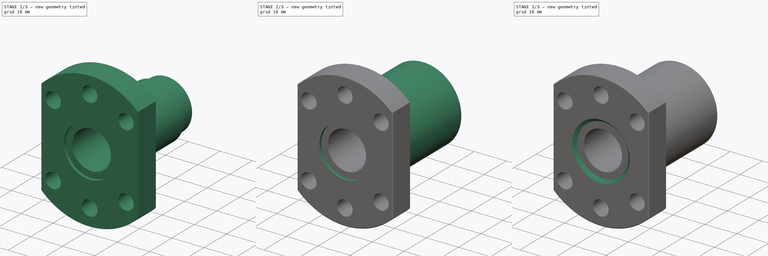
[diagram: build sequence overview — one tinted view per stage of 3, left to right]
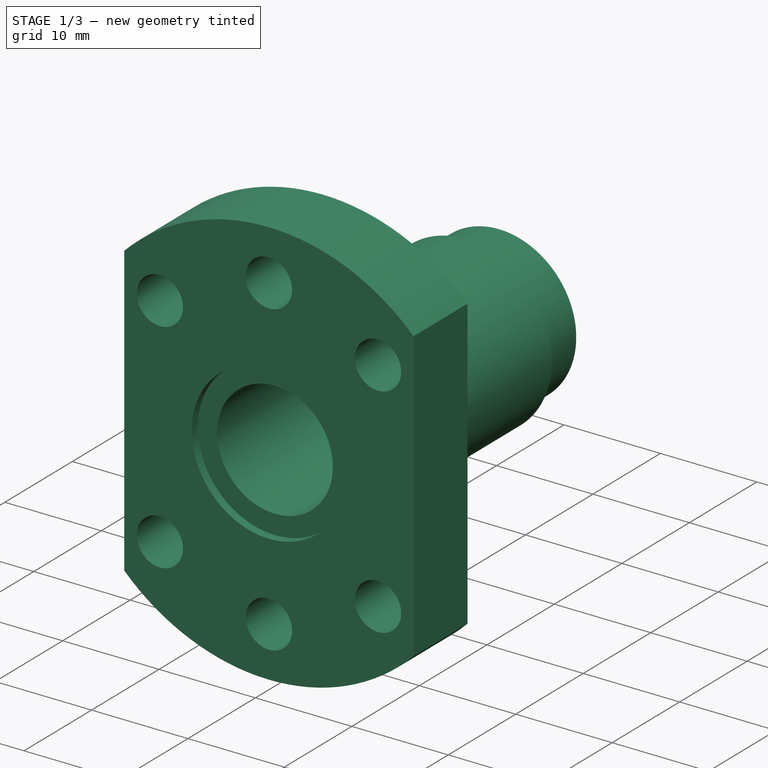
[diagram: stage 1 of 3 — iso view after this stage's code; geometry added in this stage tinted green]
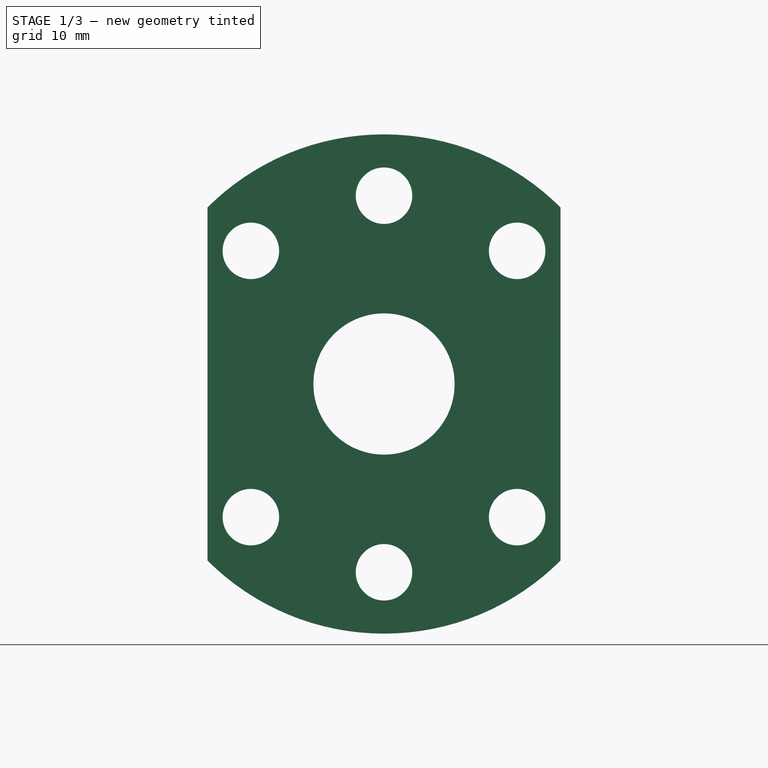
[diagram: stage 1 of 3 — front view after this stage's code; geometry added in this stage tinted green]
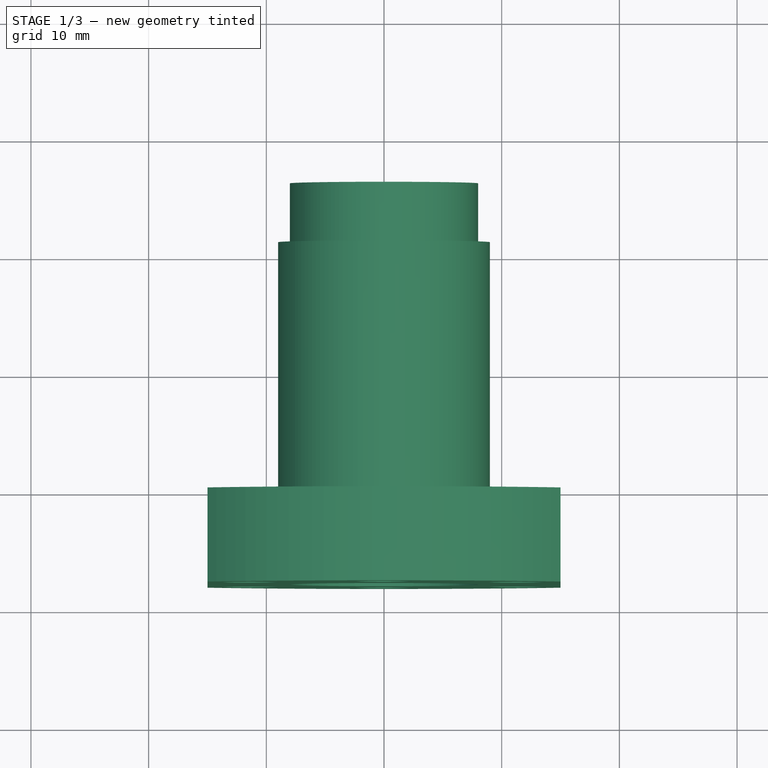
[diagram: stage 1 of 3 — top view after this stage's code; geometry added in this stage tinted green]
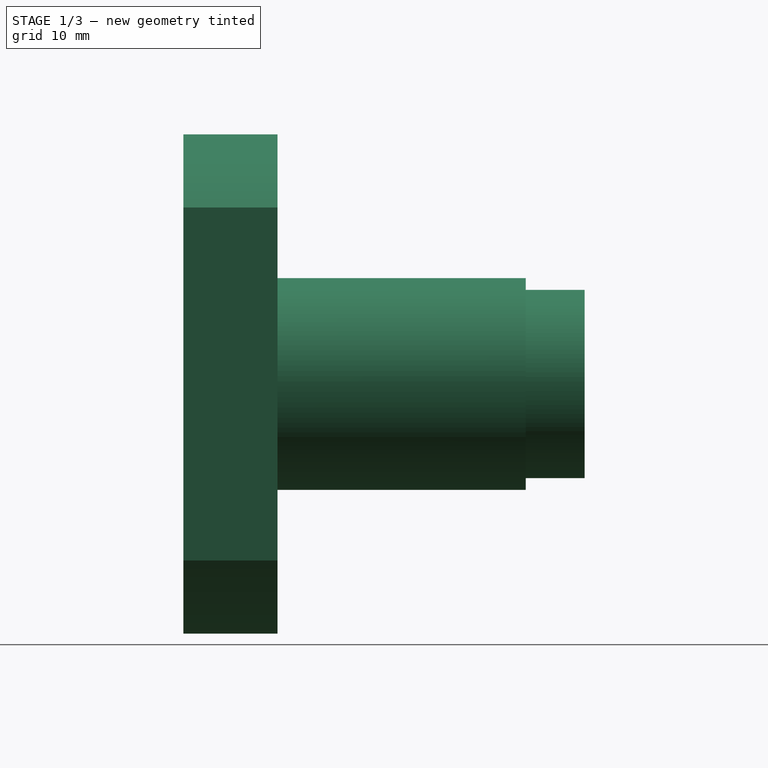
[diagram: stage 1 of 3 — right view after this stage's code; geometry added in this stage tinted green]
FCSTD DOCUMENT  (FreeCAD 0.15R4671 (Git))
Label: ballnut
License: All rights reserved
LicenseURL: http://en.wikipedia.org/wiki/All_rights_reserved
objects: Sketcher::SketchObject×4, PartDesign::Chamfer×3, PartDesign::Pad×2, PartDesign::Pocket×1, PartDesign::Revolution×1, Part::MultiFuse×1
note: 16 computed .brp shape members not serialized (recipe doc carries the construction recipe); baked Part::Feature solids carry a one-line shape summary decoded from their .brp

FEATURE [Sketcher::SketchObject] Sketch  label="plate-sketch"
  Placement = pos=(0,0,0) rot=(1,0,0;1.5708rad)
  sketch-geometry (7):
    g0: LineSegment [constr] StartX=-15 StartY=15 StartZ=0 EndX=15 EndY=15 EndZ=0
    g1: LineSegment StartX=15 StartY=15 StartZ=0 EndX=15 EndY=-15 EndZ=0
    g2: LineSegment [constr] StartX=15 StartY=-15 StartZ=0 EndX=-15 EndY=-15 EndZ=0
    g3: LineSegment StartX=-15 StartY=-15 StartZ=0 EndX=-15 EndY=15 EndZ=0
    g4: ArcOfCircle CenterX=0 CenterY=0 CenterZ=0 NormalX=0 NormalY=0 NormalZ=1 Radius=21.2132 StartAngle=0.785398 EndAngle=2.35619
    g5: ArcOfCircle CenterX=0 CenterY=0 CenterZ=0 NormalX=0 NormalY=0 NormalZ=1 Radius=21.2132 StartAngle=3.92699 EndAngle=5.49779
    g6: Circle CenterX=0 CenterY=0 CenterZ=0 NormalX=0 NormalY=0 NormalZ=1 Radius=8
  constraints (19):
    c: Coincident(g0,g1)
    c: Coincident(g1,g2)
    c: Coincident(g2,g3)
    c: Coincident(g3,g0)
    c: Horizontal(g2)
    c: Vertical(g1)
    c: Coincident(g4,g-1)
    c: Coincident(g4,g0)
    c: Coincident(g4,g0)
    c: Coincident(g5,g-1)
    c: Coincident(g5,g1)
    c: Coincident(g5,g2)
    c: Symmetric(g0,g2,g-1)
    c: Vertical(g3)
    c: DistanceY(g0,g1) = -30
    c: Horizontal(g0)
    c: Equal(g0,g1)
    c: Coincident(g6,g-1)
    c: Radius(g6) = 8
FEATURE [PartDesign::Pad] Pad  label="plate"
  Length = 8
  Length2 = 100
  Placement = pos=(0,0,0) rot=(1,0,0;1.5708rad)
  Sketch = -> Sketch
  Type = 0
FEATURE [Sketcher::SketchObject] Sketch001  label="plate-holes-sletch"
  Placement = pos=(0,-8,0) rot=(1,0,0;1.5708rad)
  Support = -> Pad [Face7]
  sketch-geometry (10):
    g0: Circle [constr] CenterX=0 CenterY=0 CenterZ=0 NormalX=0 NormalY=0 NormalZ=1 Radius=16
    g1: LineSegment [constr] StartX=11.3137 StartY=-11.3137 StartZ=0 EndX=-11.3137 EndY=11.3137 EndZ=0
    g2: LineSegment [constr] StartX=11.3137 StartY=11.3137 StartZ=0 EndX=-11.3137 EndY=-11.3137 EndZ=0
    g3: Circle CenterX=-11.3137 CenterY=11.3137 CenterZ=0 NormalX=0 NormalY=0 NormalZ=1 Radius=2.4
    g4: LineSegment [constr] StartX=0 StartY=16 StartZ=0 EndX=0 EndY=-16 EndZ=0
    g5: Circle CenterX=0 CenterY=16 CenterZ=0 NormalX=0 NormalY=0 NormalZ=1 Radius=2.4
    g6: Circle CenterX=11.3137 CenterY=11.3137 CenterZ=0 NormalX=0 NormalY=0 NormalZ=1 Radius=2.4
    g7: Circle CenterX=11.3137 CenterY=-11.3137 CenterZ=0 NormalX=0 NormalY=0 NormalZ=1 Radius=2.4
    g8: Circle CenterX=0 CenterY=-16 CenterZ=0 NormalX=0 NormalY=0 NormalZ=1 Radius=2.4
    g9: Circle CenterX=-11.3137 CenterY=-11.3137 CenterZ=0 NormalX=0 NormalY=0 NormalZ=1 Radius=2.4
  constraints (26):
    c: Coincident(g0,g-1)
    c: Radius(g0) = 16
    c: PointOnObject(g1,g0)
    c: PointOnObject(g1,g0)
    c: PointOnObject(g-1,g1)
    c: PointOnObject(g2,g0)
    c: PointOnObject(g2,g0)
    c: PointOnObject(g-1,g2)
    c: Angle(g-2,g1) = 0.785398
    c: Angle(g2,g-2) = 0.785398
    c: Coincident(g3,g1)
    c: PointOnObject(g4,g0)
    c: PointOnObject(g4,g0)
    c: PointOnObject(g4,g-2)
    c: PointOnObject(g4,g-2)
    c: Coincident(g5,g4)
    c: Coincident(g6,g2)
    c: Coincident(g7,g1)
    c: Coincident(g8,g4)
    c: Coincident(g9,g2)
    c: Radius(g7) = 2.4
    c: Equal(g7,g8)
    c: Equal(g7,g9)
    c: Equal(g7,g3)
    c: Equal(g7,g5)
    c: Equal(g7,g6)
FEATURE [PartDesign::Pocket] Pocket  label="plate-holes"
  Length = 5
  Placement = pos=(0,0,0) rot=(1,0,0;1.5708rad)
  Sketch = -> Sketch001
  Type = 1
FEATURE [Sketcher::SketchObject] Sketch003  label="housing-inner-sketch"
  Placement = pos=(0,0,0) rot=(0.57735,0.57735,0.57735;2.0944rad)
  sketch-geometry (8):
    g0: LineSegment StartX=-7.1 StartY=6 StartZ=0 EndX=-7.1 EndY=8 EndZ=0
    g1: LineSegment StartX=26.1 StartY=8 StartZ=0 EndX=26.1 EndY=6 EndZ=0
    g2: LineSegment StartX=26.1 StartY=6 StartZ=0 EndX=-7.1 EndY=6 EndZ=0
    g3: LineSegment StartX=-7.1 StartY=8 StartZ=0 EndX=-2.1 EndY=8 EndZ=0
    g4: LineSegment StartX=-2.1 StartY=8 StartZ=0 EndX=-2.1 EndY=9 EndZ=0
    g5: LineSegment StartX=-2.1 StartY=9 StartZ=0 EndX=21.1 EndY=9 EndZ=0
    g6: LineSegment StartX=21.1 StartY=9 StartZ=0 EndX=21.1 EndY=8 EndZ=0
    g7: LineSegment StartX=21.1 StartY=8 StartZ=0 EndX=26.1 EndY=8 EndZ=0
  constraints (24):
    c: Vertical(g0)
    c: Vertical(g1)
    c: Coincident(g1,g2)
    c: Coincident(g2,g0)
    c: DistanceX(g-1,g0) = -7.1
    c: DistanceY(g-1,g0) = 6
    c: DistanceY(g-1,g0) = 8
    c: Horizontal(g2)
    c: DistanceX(g0,g1) = 33.2
    c: Coincident(g0,g3)
    c: Horizontal(g3)
    c: Coincident(g3,g4)
    c: Vertical(g4)
    c: Coincident(g4,g5)
    c: Horizontal(g5)
    c: Coincident(g5,g6)
    c: Vertical(g6)
    c: Coincident(g6,g7)
    c: Coincident(g7,g1)
    c: Horizontal(g7)
    c: PointOnObject(g6,g3)
    c: Equal(g7,g3)
    c: DistanceY(g5,g6) = -1
    c: DistanceX(g6,g1) = 5
FEATURE [PartDesign::Revolution] Revolution  label="housing-inner"
  Angle = 360
  Axis = (0,1,0)
  Base = (0,0,0)
  Placement = pos=(0,0,0) rot=(0.57735,0.57735,0.57735;2.0944rad)
  ReferenceAxis = -> Sketch003 [H_Axis]
  Sketch = -> Sketch003
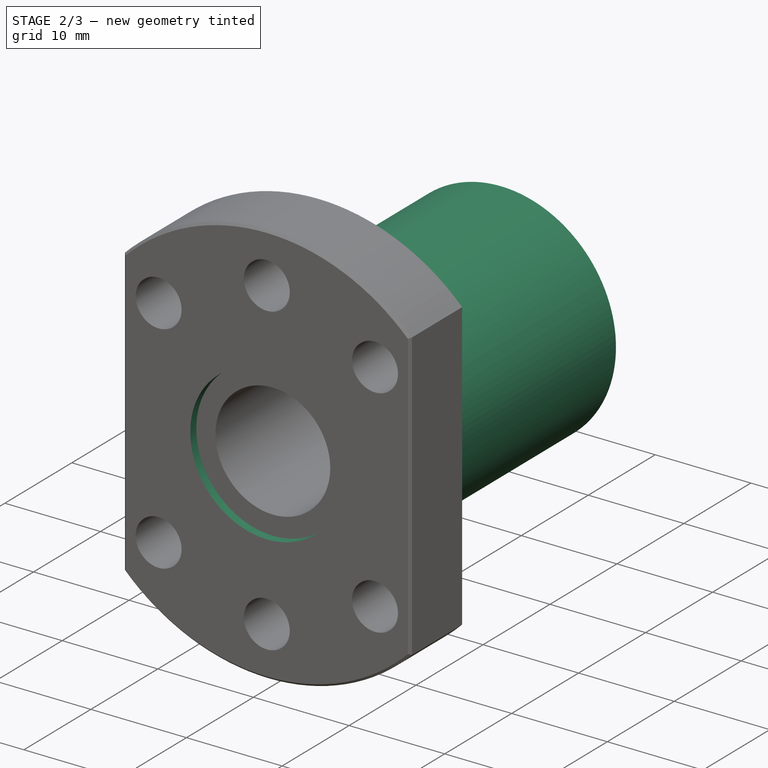
[diagram: stage 2 of 3 — iso view after this stage's code; geometry added in this stage tinted green]
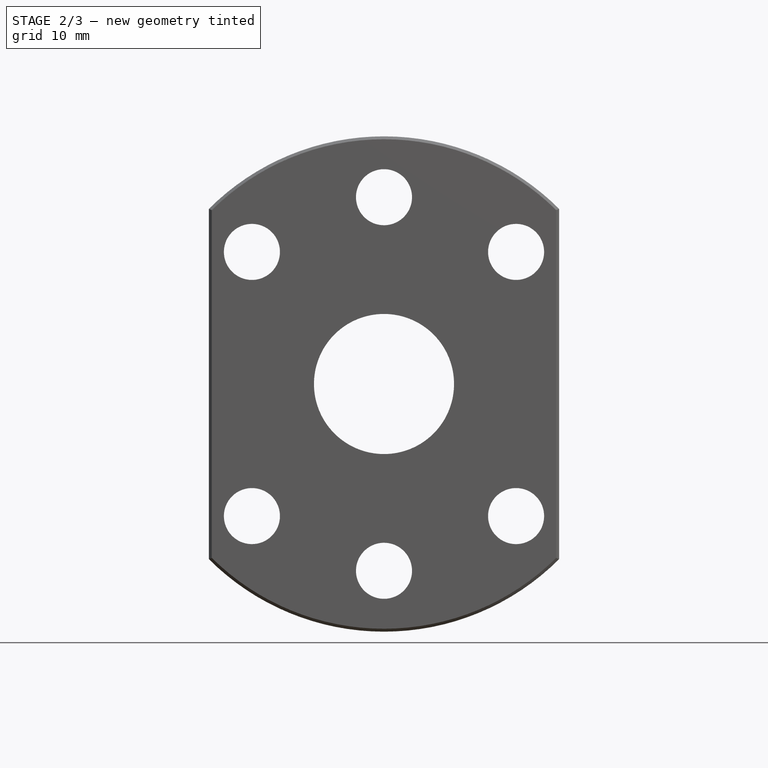
[diagram: stage 2 of 3 — front view after this stage's code; geometry added in this stage tinted green]
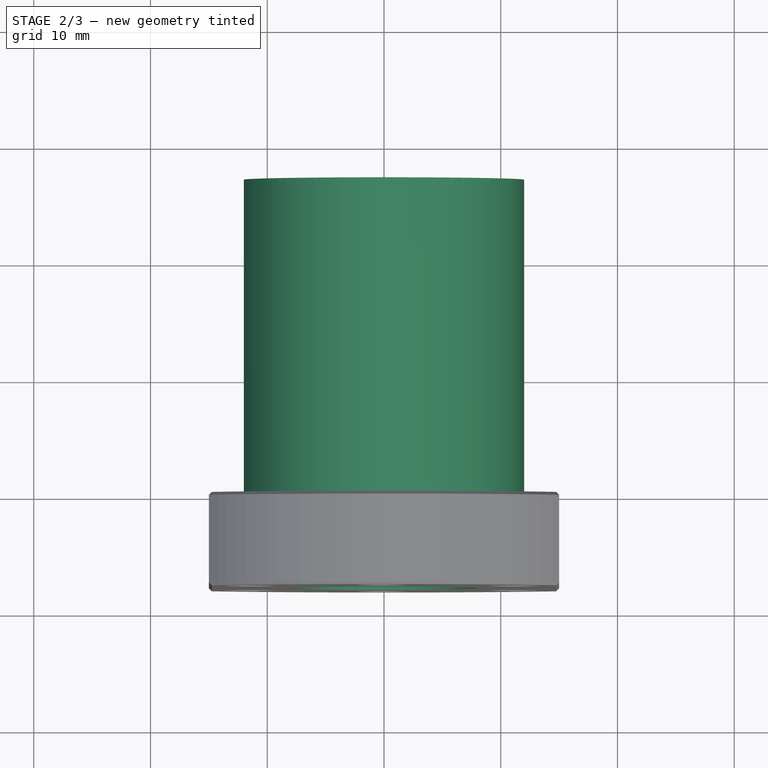
[diagram: stage 2 of 3 — top view after this stage's code; geometry added in this stage tinted green]
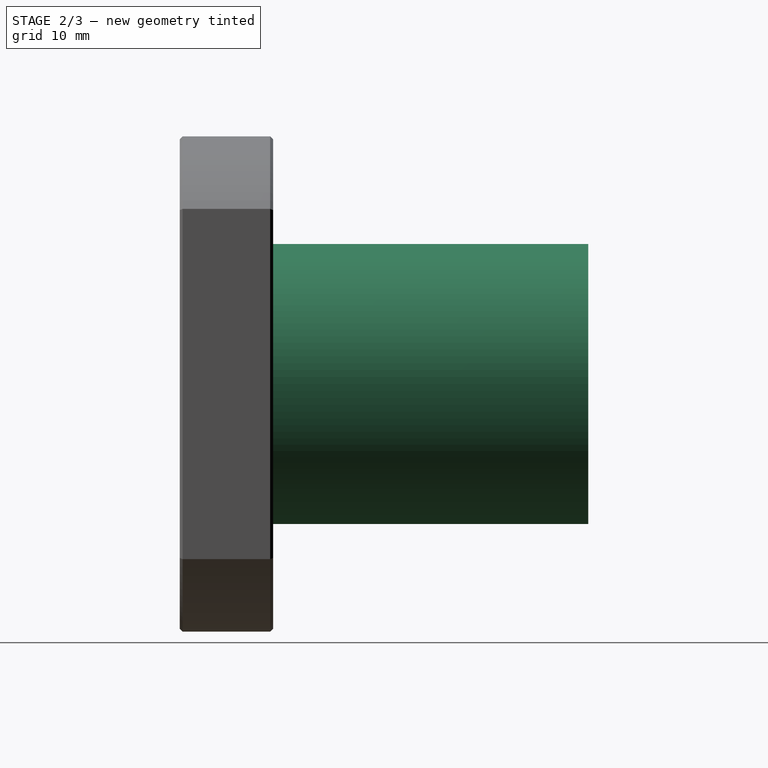
[diagram: stage 2 of 3 — right view after this stage's code; geometry added in this stage tinted green]
FEATURE [Sketcher::SketchObject] Sketch002  label="housing-sketch"
  Placement = pos=(0,-8,0) rot=(1,0,0;1.5708rad)
  Support = -> Pocket [Face5]
  sketch-geometry (2):
    g0: Circle CenterX=0 CenterY=0 CenterZ=0 NormalX=0 NormalY=0 NormalZ=1 Radius=8
    g1: Circle CenterX=0 CenterY=0 CenterZ=0 NormalX=0 NormalY=0 NormalZ=1 Radius=12
  constraints (4):
    c: Coincident(g0,g-1)
    c: Radius(g1) = 12
    c: Radius(g0) = 8
    c: Coincident(g1,g-1)
FEATURE [PartDesign::Pad] Pad001  label="housing"
  Length = 35
  Length2 = 100
  Placement = pos=(0,0,0) rot=(1,0,0;1.5708rad)
  Reversed = true
  Sketch = -> Sketch002
  Type = 0
FEATURE [PartDesign::Chamfer] Chamfer  label="plate-chamfer"
  Base = -> Pad001 [Edge10,Edge9,Edge11,Edge19,Edge6,Edge7,Edge4,Edge3]
  Placement = pos=(0,0,0) rot=(1,0,0;1.5708rad)
  Size = 0.25
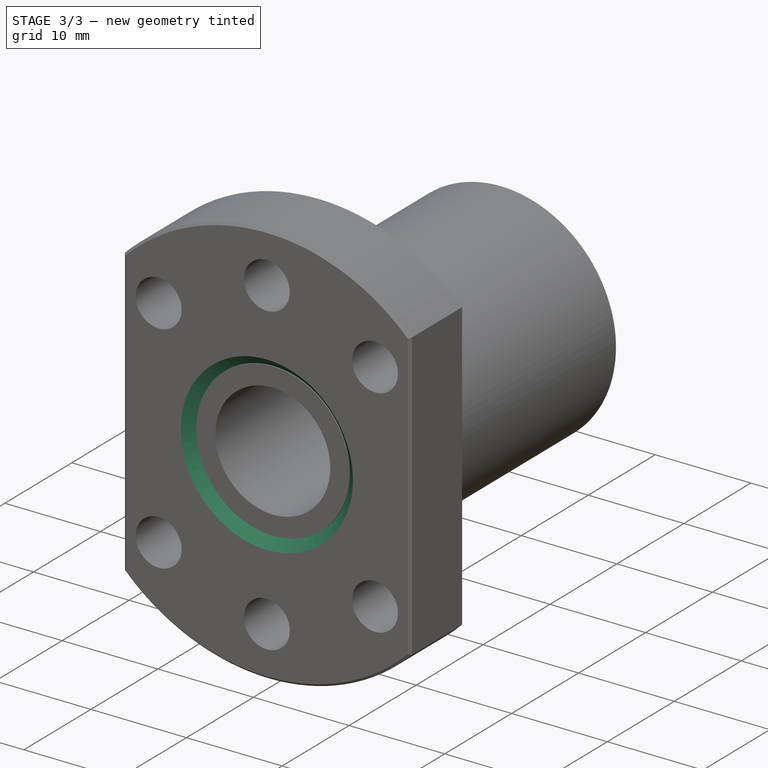
[diagram: stage 3 of 3 — iso view after this stage's code; geometry added in this stage tinted green]
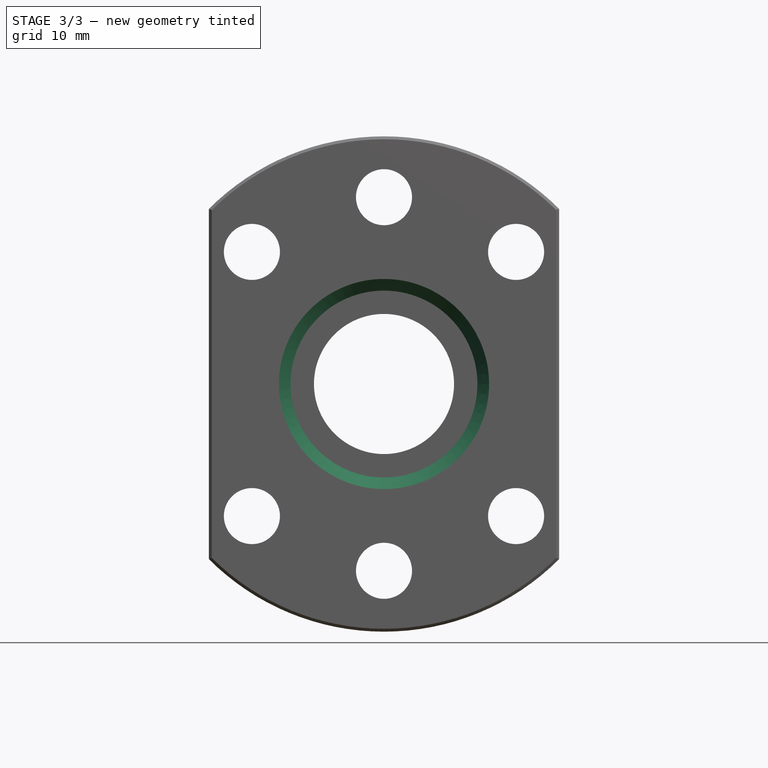
[diagram: stage 3 of 3 — front view after this stage's code; geometry added in this stage tinted green]
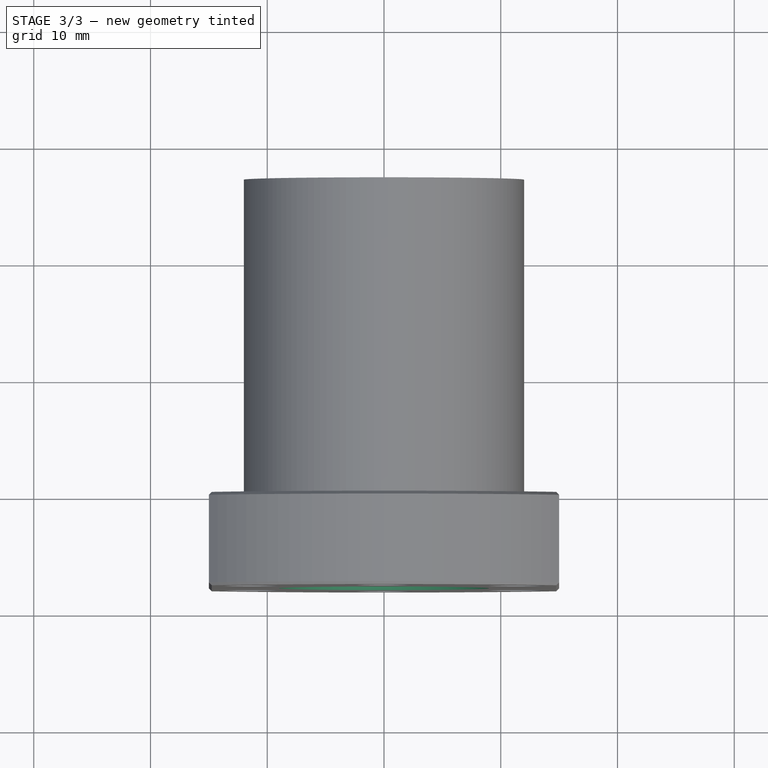
[diagram: stage 3 of 3 — top view after this stage's code; geometry added in this stage tinted green]
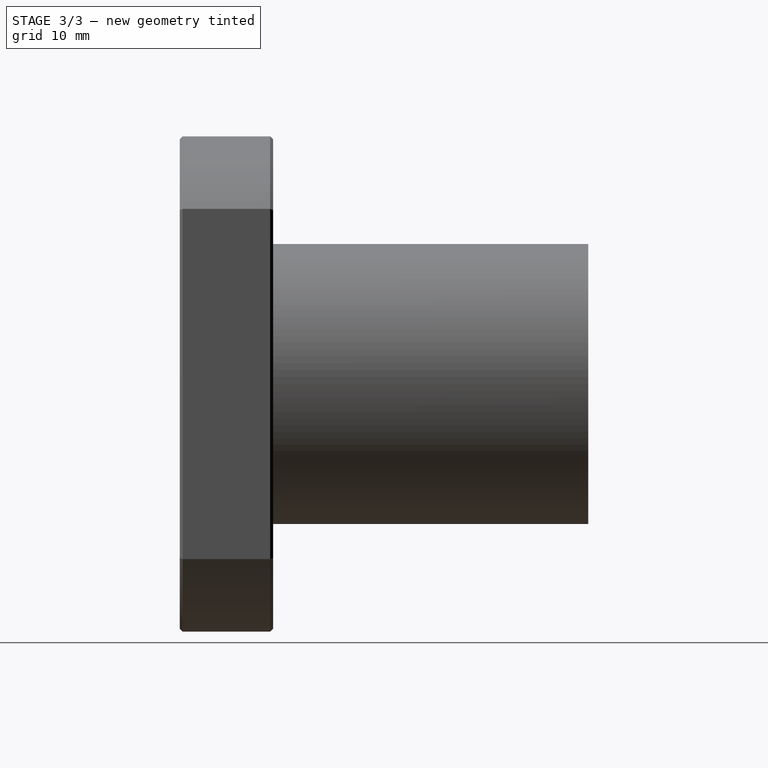
[diagram: stage 3 of 3 — right view after this stage's code; geometry added in this stage tinted green]
FEATURE [PartDesign::Chamfer] Chamfer001  label="plate-center-chamfer"
  Base = -> Chamfer [Edge35]
  Placement = pos=(0,0,0) rot=(1,0,0;1.5708rad)
  Size = 1
FEATURE [PartDesign::Chamfer] Chamfer002  label="housing-chamfer"
  Base = -> Chamfer001 [Edge35]
  Placement = pos=(0,0,0) rot=(1,0,0;1.5708rad)
  Size = 1
FEATURE [Part::MultiFuse] Fusion  label="ballnut"
  Shapes = -> [Chamfer002,Revolution]
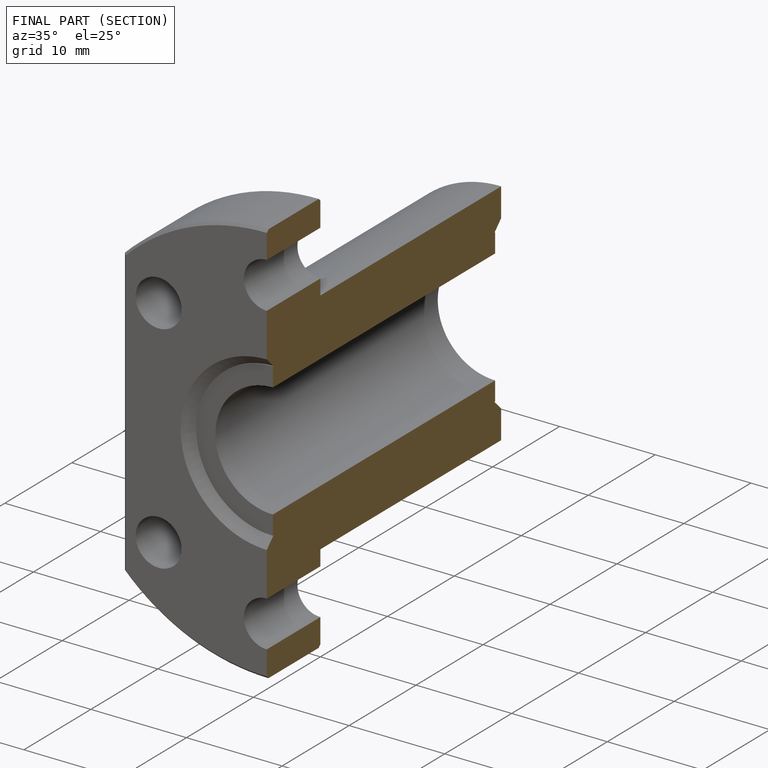
[diagram: finished part — half-section view (interior)]
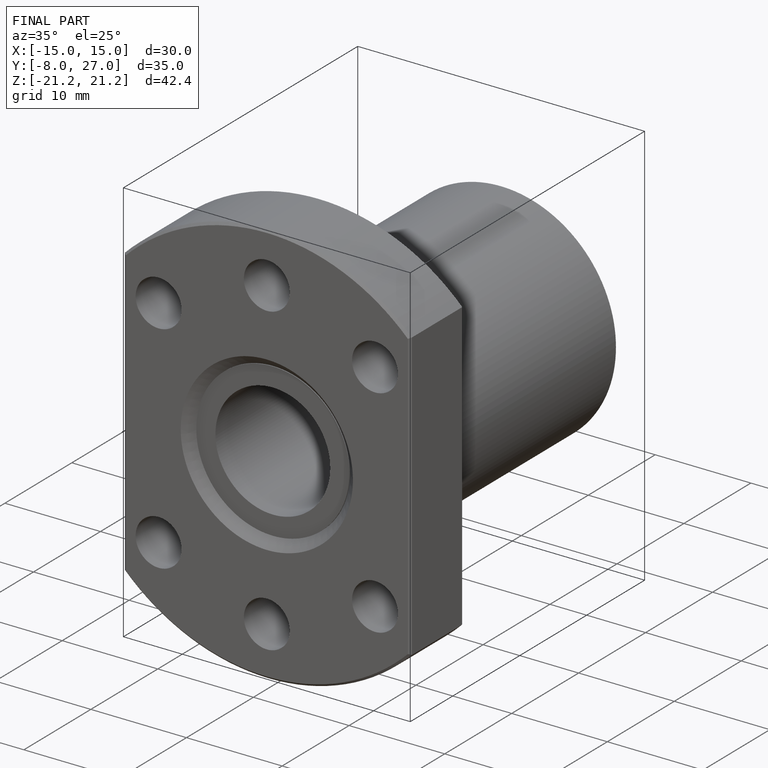
[diagram: finished part — iso view with bounding-box wireframe]
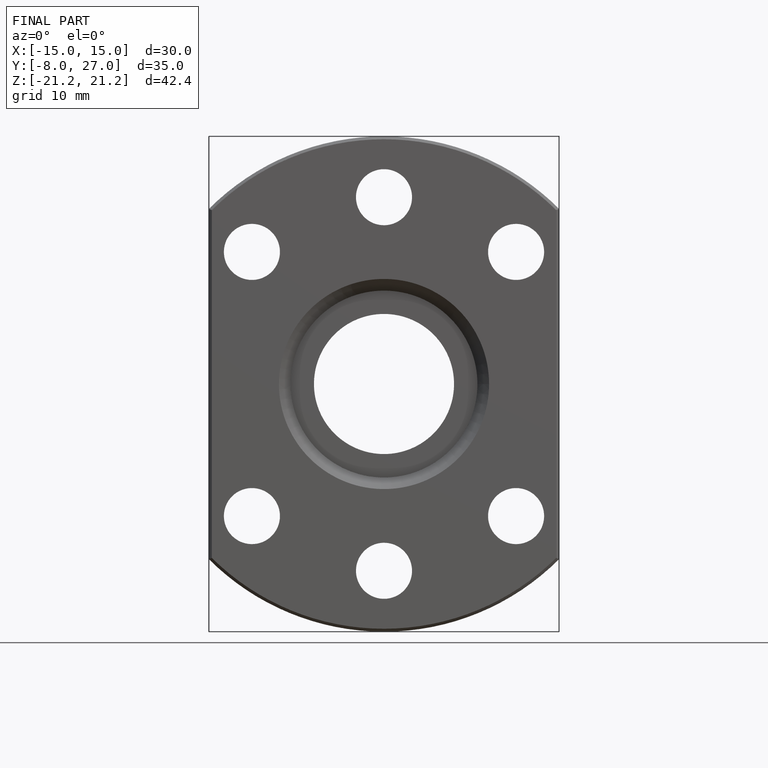
[diagram: finished part — front view with bounding-box wireframe]
